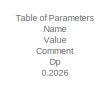
[diagram: root canvas - part 1/5, top right region]
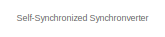
[diagram: root canvas - part 2/5, top left region]
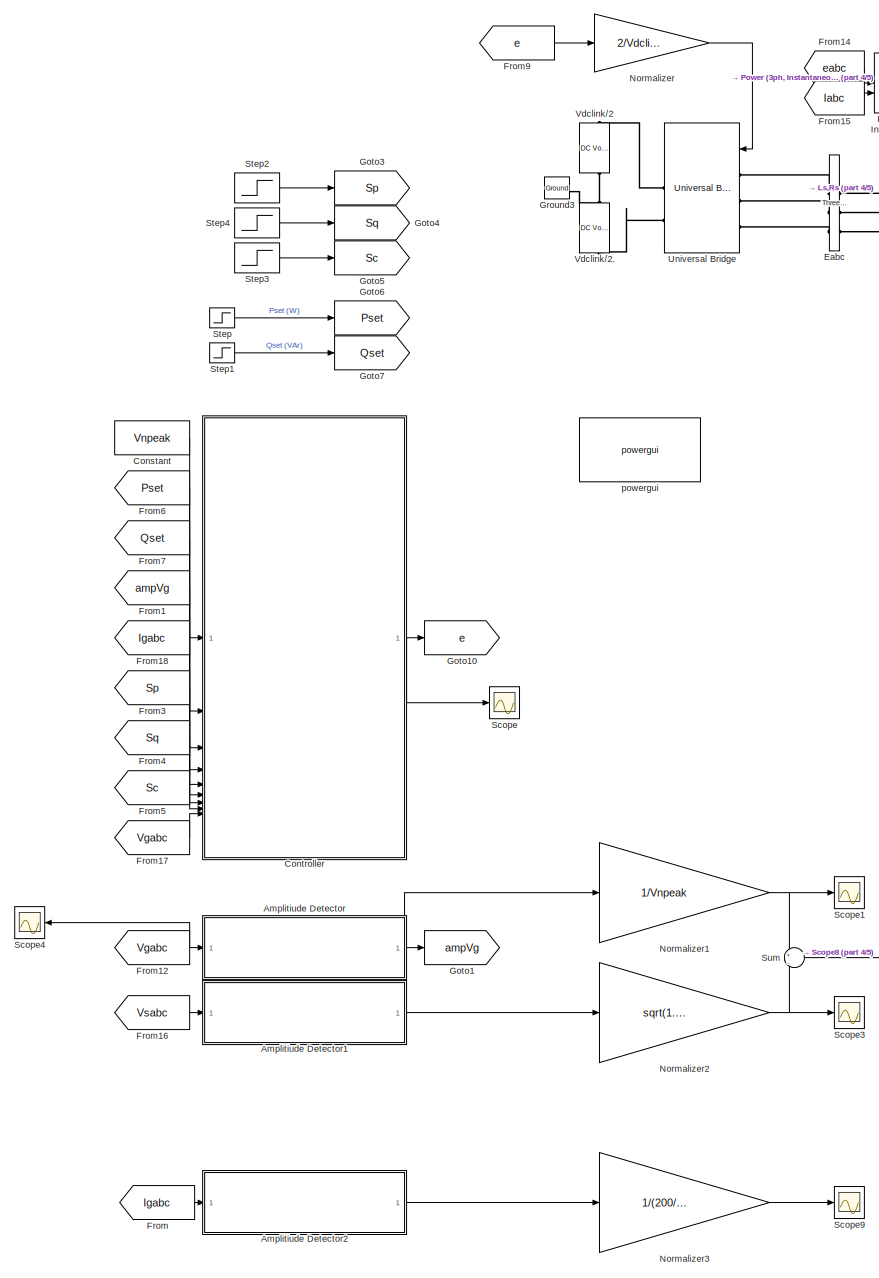
[diagram: root canvas - part 3/5, left side, full height]
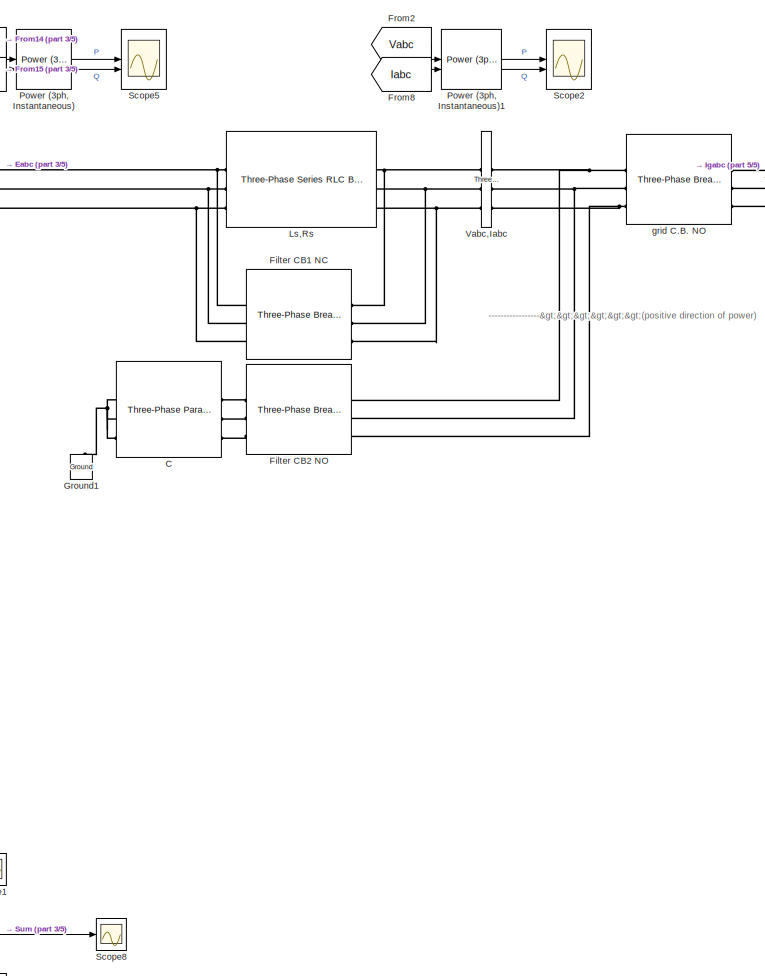
[diagram: root canvas - part 4/5, central region]
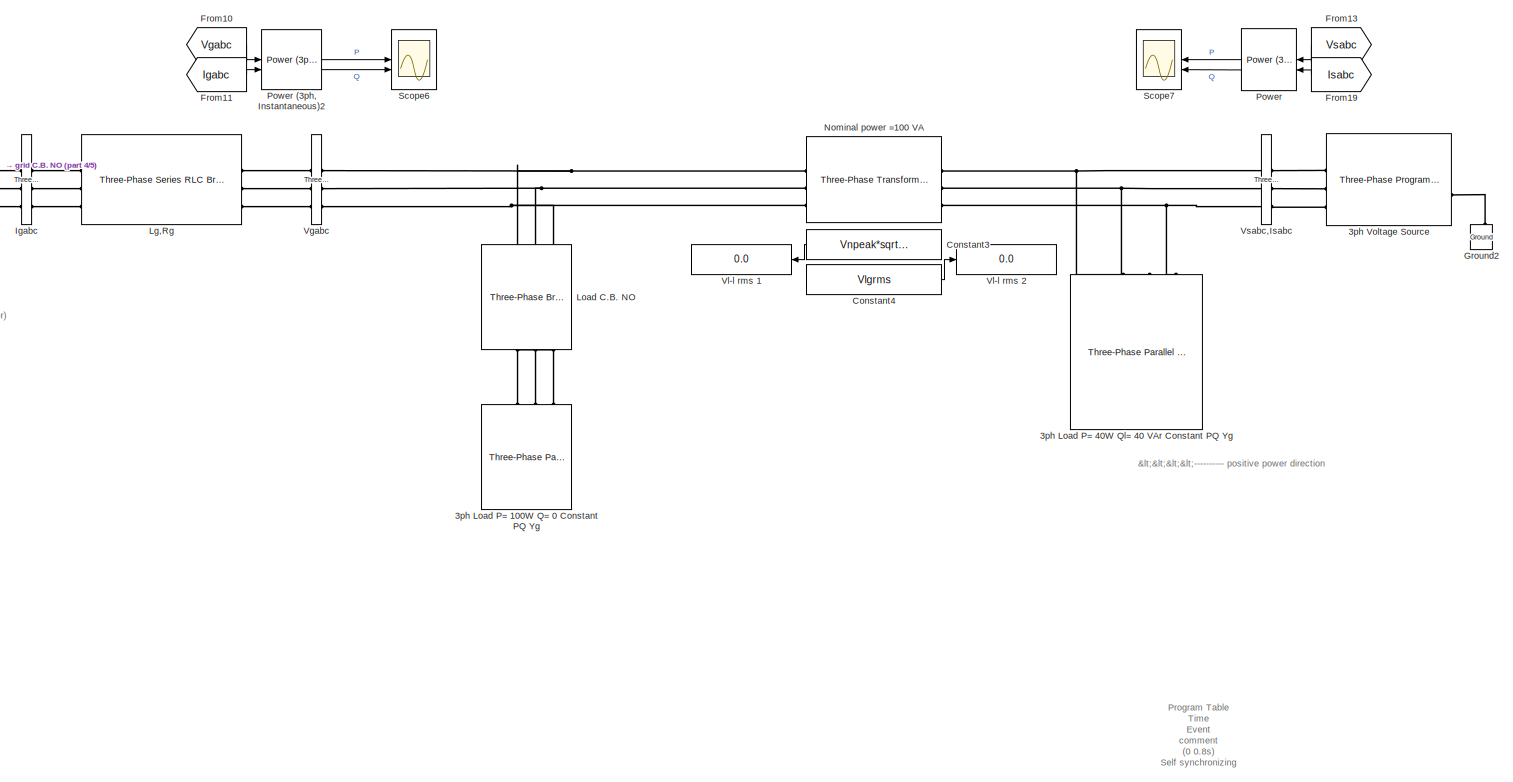
[diagram: root canvas - part 5/5, middle right region]
MODEL slx_bbf747a869e3
KIND model
CONFIG AbsTol = auto
CONFIG EnableMultiTasking = off
CONFIG FixedStep = 1e-5
CONFIG MaxStep = 0.2e-3
CONFIG MinStep = auto
CONFIG RelTol = 1e-3
CONFIG SampleTimeConstraint = Unconstrained
CONFIG SolverName = ode23tb
CONFIG StartTime = 0.0
CONFIG StopTime = 9
WORKSPACE source: mxarray member
WORKSPACE Dp = 0.2026
WORKSPACE Dq = 117.88
WORKSPACE Ki = 9
WORKSPACE Kp = 1
WORKSPACE L = 0.0002
WORKSPACE Lg = 0.00015
WORKSPACE Ls = 0.00045
WORKSPACE Pset = 80
WORKSPACE Qset = 60
WORKSPACE R = 0.05
WORKSPACE Rg = 0.045
WORKSPACE Rs = 0.135
WORKSPACE Vdclink = 42
WORKSPACE Vlgrms = 380
WORKSPACE Vnpeak = 16.9667989517
WORKSPACE Wn = 314.159265359
WORKSPACE Ws = 94247.7796077
WORKSPACE fg = 50
WORKSPACE fs = 15000
WORKSPACE tf = 0.002
WORKSPACE tv = 0.02
BLOCK [Reference] 3ph Load P= 100W Q= 0 Constant PQ Yg  REF=spsThreePhaseParallelRLCLoadLib/Three-Phase
Parallel RLC Load
  AttributesFormatString = \n
  LibrarySourceBlock = sps_lib/Passives/Three-Phase\nParallel RLC Load
  NameLocation = right
  SourceBlock = spsThreePhaseParallelRLCLoadLib/Three-Phase\nParallel RLC Load
  SourceType = Three-Phase Parallel RLC Load
BLOCK [Reference] 3ph Load P= 40W Ql= 40 VAr Constant PQ Yg  REF=spsThreePhaseParallelRLCLoadLib/Three-Phase
Parallel RLC Load
  AttributesFormatString = \n
  LibrarySourceBlock = sps_lib/Passives/Three-Phase\nParallel RLC Load
  NameLocation = right
  SourceBlock = spsThreePhaseParallelRLCLoadLib/Three-Phase\nParallel RLC Load
  SourceType = Three-Phase Parallel RLC Load
BLOCK [Reference] 3ph Voltage Source  REF=spsThreePhaseProgrammableVoltageSourceLib/Three-Phase
Programmable
Voltage Source
  LibrarySourceBlock = sps_lib/Sources/Three-Phase\nProgrammable\nVoltage Source
  SourceBlock = spsThreePhaseProgrammableVoltageSourceLib/Three-Phase\nProgrammable\nVoltage Source
  SourceType = Three-Phase Programmable Voltage Source
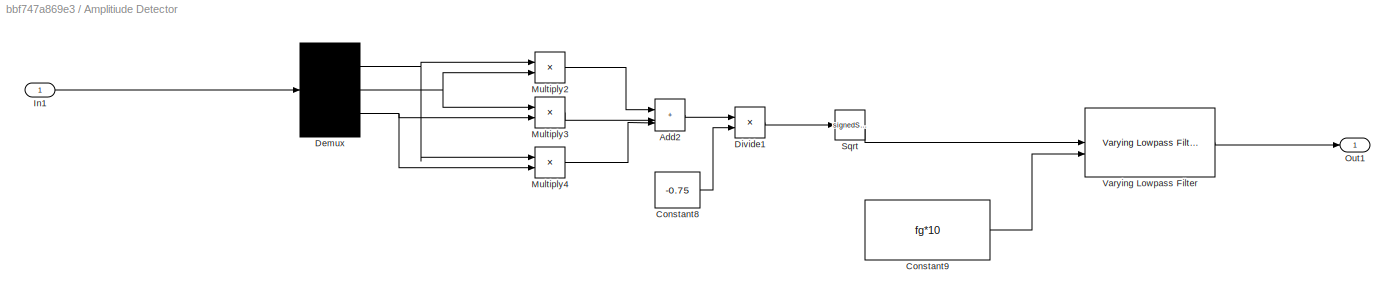
BLOCK [SubSystem] Amplitiude Detector
  NameLocation = top
BLOCK [Sum] Amplitiude Detector/Add2
  IconShape = rectangular
  Inputs = 3
BLOCK [Constant] Amplitiude Detector/Constant8
  Value = -0.75
BLOCK [Constant] Amplitiude Detector/Constant9
  Value = fg*10
BLOCK [Demux] Amplitiude Detector/Demux
  DisplayOption = none
  Outputs = 3
BLOCK [Product] Amplitiude Detector/Divide1
  Inputs = */
BLOCK [Inport] Amplitiude Detector/In1
BLOCK [Product] Amplitiude Detector/Multiply2
BLOCK [Product] Amplitiude Detector/Multiply3
BLOCK [Product] Amplitiude Detector/Multiply4
BLOCK [Outport] Amplitiude Detector/Out1
  VectorParamsAs1DForOutWhenUnconnected = off
BLOCK [Sqrt] Amplitiude Detector/Sqrt
  Operator = signedSqrt
BLOCK [Reference] Amplitiude Detector/Varying Lowpass Filter  REF=cstblocks/Linear Parameter Varying/Varying Lowpass Filter
  SourceBlock = cstblocks/Linear Parameter Varying/Varying Lowpass Filter
  SourceType = Varying Lowpass Filter
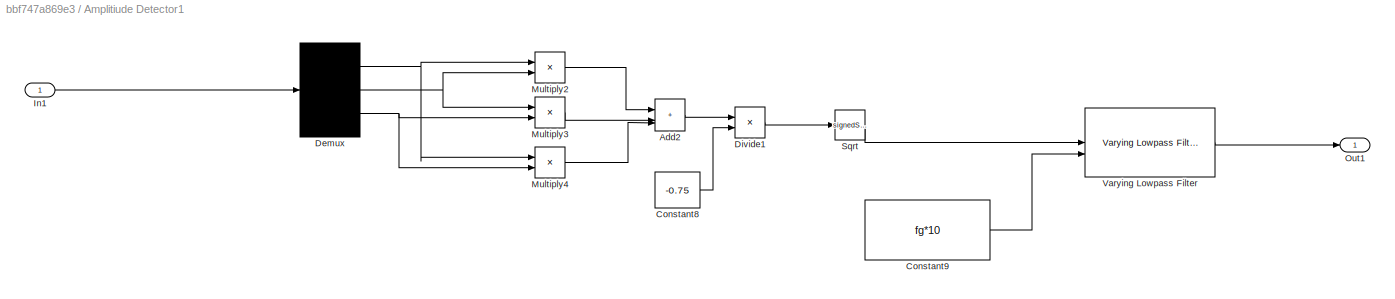
BLOCK [SubSystem] Amplitiude Detector1
BLOCK [Sum] Amplitiude Detector1/Add2
  IconShape = rectangular
  Inputs = 3
BLOCK [Constant] Amplitiude Detector1/Constant8
  Value = -0.75
BLOCK [Constant] Amplitiude Detector1/Constant9
  Value = fg*10
BLOCK [Demux] Amplitiude Detector1/Demux
  DisplayOption = none
  Outputs = 3
BLOCK [Product] Amplitiude Detector1/Divide1
  Inputs = */
BLOCK [Inport] Amplitiude Detector1/In1
BLOCK [Product] Amplitiude Detector1/Multiply2
BLOCK [Product] Amplitiude Detector1/Multiply3
BLOCK [Product] Amplitiude Detector1/Multiply4
BLOCK [Outport] Amplitiude Detector1/Out1
  VectorParamsAs1DForOutWhenUnconnected = off
BLOCK [Sqrt] Amplitiude Detector1/Sqrt
  Operator = signedSqrt
BLOCK [Reference] Amplitiude Detector1/Varying Lowpass Filter  REF=cstblocks/Linear Parameter Varying/Varying Lowpass Filter
  SourceBlock = cstblocks/Linear Parameter Varying/Varying Lowpass Filter
  SourceType = Varying Lowpass Filter
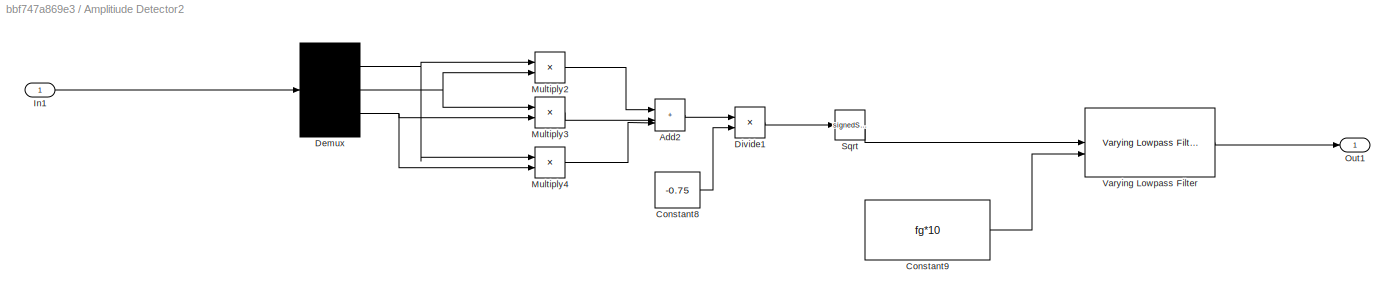
BLOCK [SubSystem] Amplitiude Detector2
BLOCK [Sum] Amplitiude Detector2/Add2
  IconShape = rectangular
  Inputs = 3
BLOCK [Constant] Amplitiude Detector2/Constant8
  Value = -0.75
BLOCK [Constant] Amplitiude Detector2/Constant9
  Value = fg*10
BLOCK [Demux] Amplitiude Detector2/Demux
  DisplayOption = none
  Outputs = 3
BLOCK [Product] Amplitiude Detector2/Divide1
  Inputs = */
BLOCK [Inport] Amplitiude Detector2/In1
BLOCK [Product] Amplitiude Detector2/Multiply2
BLOCK [Product] Amplitiude Detector2/Multiply3
BLOCK [Product] Amplitiude Detector2/Multiply4
BLOCK [Outport] Amplitiude Detector2/Out1
  VectorParamsAs1DForOutWhenUnconnected = off
BLOCK [Sqrt] Amplitiude Detector2/Sqrt
  Operator = signedSqrt
BLOCK [Reference] Amplitiude Detector2/Varying Lowpass Filter  REF=cstblocks/Linear Parameter Varying/Varying Lowpass Filter
  SourceBlock = cstblocks/Linear Parameter Varying/Varying Lowpass Filter
  SourceType = Varying Lowpass Filter
BLOCK [Reference] C  REF=spsThreePhaseParallelRLCBranchLib/Three-Phase
Parallel RLC Branch
  AttributesFormatString = \n
  LibrarySourceBlock = sps_lib/Passives/Three-Phase\nParallel RLC Branch
  SourceBlock = spsThreePhaseParallelRLCBranchLib/Three-Phase\nParallel RLC Branch
  SourceType = Three-Phase Parallel RLC Branch
BLOCK [Constant] Constant
  Value = Vnpeak
BLOCK [Constant] Constant3
  Value = Vnpeak*sqrt(1.5)
BLOCK [Constant] Constant4
  Value = Vlgrms
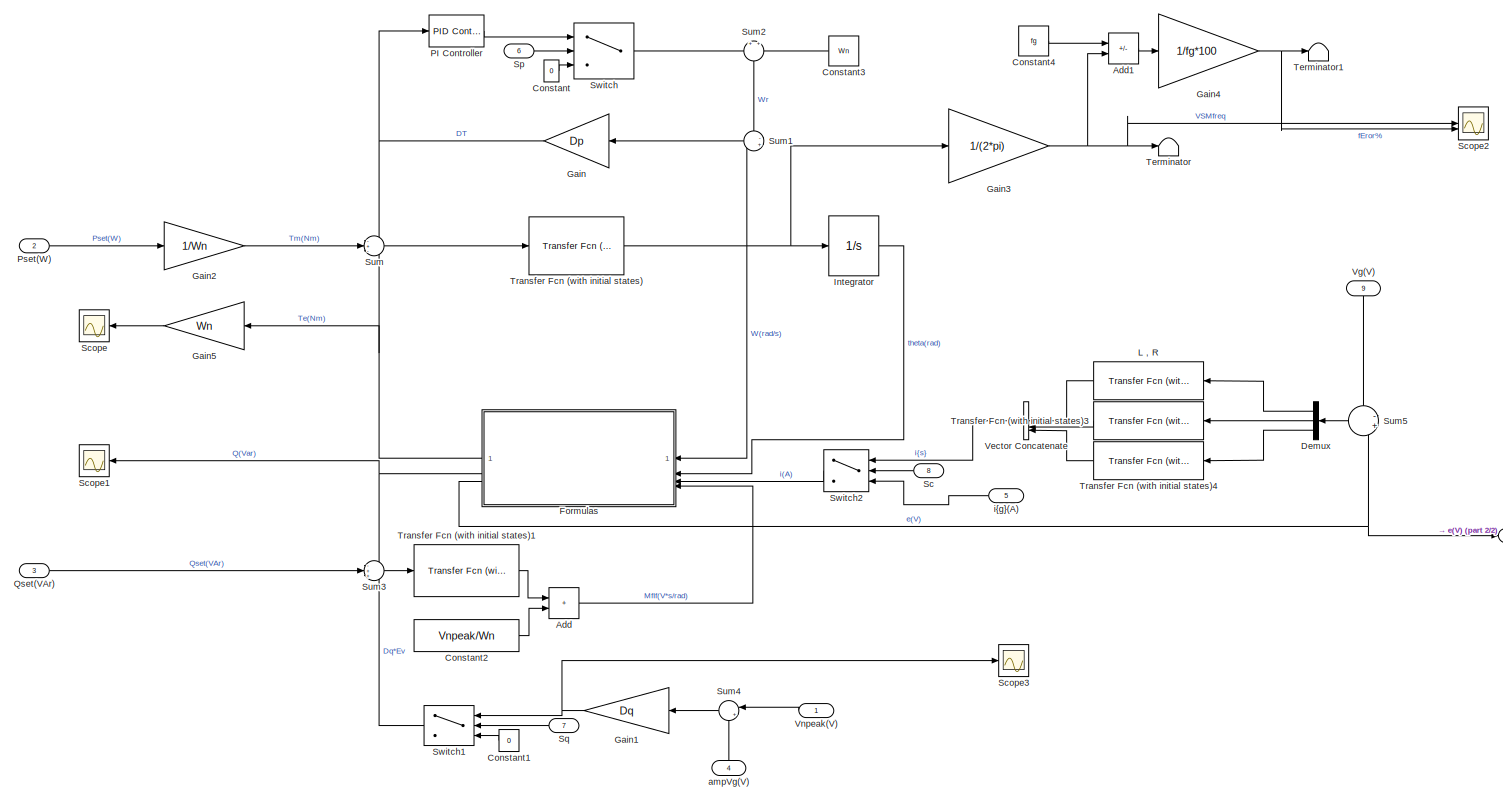
[diagram: Controller - part 1/2, most of the canvas]
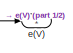
[diagram: Controller - part 2/2, bottom right region]
BLOCK [SubSystem] Controller
  NameLocation = top
BLOCK [Sum] Controller/Add
  IconShape = rectangular
BLOCK [Sum] Controller/Add1
  IconShape = rectangular
  Inputs = -+
BLOCK [Constant] Controller/Constant
  Value = 0
BLOCK [Constant] Controller/Constant1
  Value = 0
BLOCK [Constant] Controller/Constant2
  Value = Vnpeak/Wn
BLOCK [Constant] Controller/Constant3
  Value = Wn
BLOCK [Constant] Controller/Constant4
  Value = fg
BLOCK [Demux] Controller/Demux
  Outputs = 3
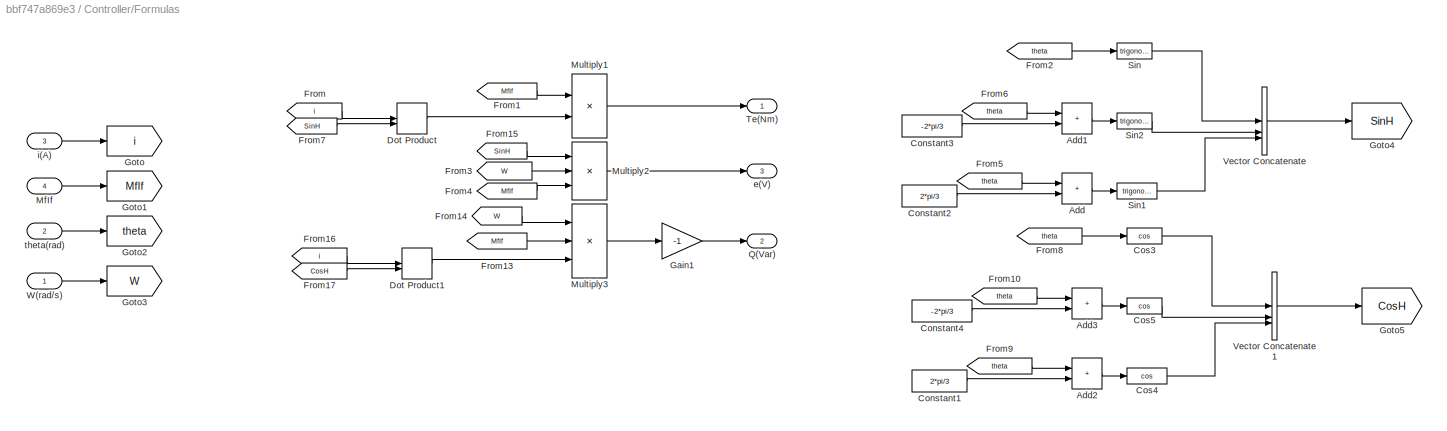
BLOCK [SubSystem] Controller/Formulas
  NameLocation = top
BLOCK [Sum] Controller/Formulas/Add
  IconShape = rectangular
BLOCK [Sum] Controller/Formulas/Add1
  IconShape = rectangular
BLOCK [Sum] Controller/Formulas/Add2
  IconShape = rectangular
BLOCK [Sum] Controller/Formulas/Add3
  IconShape = rectangular
BLOCK [Constant] Controller/Formulas/Constant1
  Value = 2*pi/3
BLOCK [Constant] Controller/Formulas/Constant2
  Value = 2*pi/3
BLOCK [Constant] Controller/Formulas/Constant3
  Value = -2*pi/3
BLOCK [Constant] Controller/Formulas/Constant4
  Value = -2*pi/3
BLOCK [Trigonometry] Controller/Formulas/Cos3
  Operator = cos
BLOCK [Trigonometry] Controller/Formulas/Cos4
  Operator = cos
BLOCK [Trigonometry] Controller/Formulas/Cos5
  Operator = cos
BLOCK [DotProduct] Controller/Formulas/Dot Product
  OutDataTypeStr = Inherit: Inherit via internal rule
BLOCK [DotProduct] Controller/Formulas/Dot Product1
  OutDataTypeStr = Inherit: Inherit via internal rule
BLOCK [From] Controller/Formulas/From
  GotoTag = i
BLOCK [From] Controller/Formulas/From1
  GotoTag = MfIf
BLOCK [From] Controller/Formulas/From10
  GotoTag = theta
BLOCK [From] Controller/Formulas/From13
  GotoTag = MfIf
BLOCK [From] Controller/Formulas/From14
  GotoTag = W
  NameLocation = top
BLOCK [From] Controller/Formulas/From15
  GotoTag = SinH
BLOCK [From] Controller/Formulas/From16
  GotoTag = i
BLOCK [From] Controller/Formulas/From17
  GotoTag = CosH
BLOCK [From] Controller/Formulas/From2
  GotoTag = theta
BLOCK [From] Controller/Formulas/From3
  GotoTag = W
  NameLocation = top
BLOCK [From] Controller/Formulas/From4
  GotoTag = MfIf
BLOCK [From] Controller/Formulas/From5
  GotoTag = theta
BLOCK [From] Controller/Formulas/From6
  GotoTag = theta
BLOCK [From] Controller/Formulas/From7
  GotoTag = SinH
BLOCK [From] Controller/Formulas/From8
  GotoTag = theta
BLOCK [From] Controller/Formulas/From9
  GotoTag = theta
BLOCK [Gain] Controller/Formulas/Gain1
  Gain = -1
BLOCK [Goto] Controller/Formulas/Goto
  GotoTag = i
BLOCK [Goto] Controller/Formulas/Goto1
  GotoTag = MfIf
BLOCK [Goto] Controller/Formulas/Goto2
  GotoTag = theta
BLOCK [Goto] Controller/Formulas/Goto3
  GotoTag = W
BLOCK [Goto] Controller/Formulas/Goto4
  GotoTag = SinH
BLOCK [Goto] Controller/Formulas/Goto5
  GotoTag = CosH
BLOCK [Inport] Controller/Formulas/MfIf
  Port = 4
  Unit = V*s/rad
BLOCK [Product] Controller/Formulas/Multiply1
BLOCK [Product] Controller/Formulas/Multiply2
  Inputs = 3
BLOCK [Product] Controller/Formulas/Multiply3
  Inputs = 3
BLOCK [Outport] Controller/Formulas/Q(Var)
  NameLocation = top
  Port = 2
  Unit = W
  VectorParamsAs1DForOutWhenUnconnected = off
BLOCK [Trigonometry] Controller/Formulas/Sin
BLOCK [Trigonometry] Controller/Formulas/Sin1
BLOCK [Trigonometry] Controller/Formulas/Sin2
BLOCK [Outport] Controller/Formulas/Te(Nm)
  NameLocation = top
  Unit = N*m
  VectorParamsAs1DForOutWhenUnconnected = off
BLOCK [Concatenate] Controller/Formulas/Vector Concatenate
  NumInputs = 3
BLOCK [Concatenate] Controller/Formulas/Vector Concatenate1
  NumInputs = 3
BLOCK [Inport] Controller/Formulas/W(rad//s)
  Unit = rad/s
BLOCK [Outport] Controller/Formulas/e(V)
  NameLocation = top
  Port = 3
  Unit = V
  VectorParamsAs1DForOutWhenUnconnected = off
BLOCK [Inport] Controller/Formulas/i(A)
  Port = 3
  Unit = A
BLOCK [Inport] Controller/Formulas/theta(rad)
  Port = 2
  Unit = rad
BLOCK [Gain] Controller/Gain
  Gain = Dp
BLOCK [Gain] Controller/Gain1
  Gain = Dq
BLOCK [Gain] Controller/Gain2
  Gain = 1/Wn
BLOCK [Gain] Controller/Gain3
  Gain = 1/(2*pi)
BLOCK [Gain] Controller/Gain4
  Gain = 1/fg*100
BLOCK [Gain] Controller/Gain5
  Gain = Wn
BLOCK [Integrator] Controller/Integrator
  WrapState = on
  WrappedStateLowerValue = 0
  WrappedStateUpperValue = 2*pi
  ZeroCross = off
BLOCK [Reference] Controller/L , R  REF=simulink_extras/Additional
Linear/Transfer Fcn
(with initial states)
  NameLocation = top
  SourceBlock = simulink_extras/Additional\nLinear/Transfer Fcn\n(with initial states)
  SourceType = Transfer Function with Initial States
BLOCK [Reference] Controller/PI Controller  REF=slpidlib/PID Controller
  SourceBlock = slpidlib/PID Controller
  SourceType = PID 1dof
BLOCK [Inport] Controller/Pset(W)
  Port = 2
  Unit = W
BLOCK [Inport] Controller/Qset(VAr)
  Port = 3
  Unit = W
BLOCK [Inport] Controller/Sc
  Port = 8
BLOCK [Scope] Controller/Scope
  Floating = off
  NumInputPorts = 1
  ScopeSpecificationString = Simulink.scopes.TimeScopeBlockCfg('CurrentConfiguration', extmgr.ConfigurationSet(extmgr.Configuration('Core','General UI',true),extmgr.Configuration('Core','Source UI',true),extmgr.Configuration('Sources','WiredSimulink',true,'DataLoggingVariableName','ScopeData3'),extmgr.Configuration('Visuals','Time Domain',true,'SerializedDisplays',{struct('MinYLimReal','-100','MaxYLimReal','100','YLabelReal',...<+1452ch>
BLOCK [Scope] Controller/Scope1
  Floating = off
  NumInputPorts = 1
  ScopeSpecificationString = Simulink.scopes.TimeScopeBlockCfg('CurrentConfiguration', extmgr.ConfigurationSet(extmgr.Configuration('Core','General UI',true),extmgr.Configuration('Core','Source UI',true),extmgr.Configuration('Sources','WiredSimulink',true,'DataLoggingVariableName','ScopeData1'),extmgr.Configuration('Visuals','Time Domain',true,'SerializedDisplays',{struct('MinYLimReal','-10','MaxYLimReal','75','YLabelReal',''...<+1399ch>
BLOCK [Scope] Controller/Scope2
  Floating = off
  NumInputPorts = 2
  ScopeSpecificationString = Simulink.scopes.TimeScopeBlockCfg('CurrentConfiguration', extmgr.ConfigurationSet(extmgr.Configuration('Core','General UI',true),extmgr.Configuration('Core','Source UI',true),extmgr.Configuration('Sources','WiredSimulink',true,'DataLoggingVariableName','ScopeData1'),extmgr.Configuration('Visuals','Time Domain',true,'SerializedDisplays',{struct('MinYLimReal','49.8','MaxYLimReal','50.2','YLabelReal'...<+2065ch>
BLOCK [Scope] Controller/Scope3
  Floating = off
  NumInputPorts = 1
  ScopeSpecificationString = Simulink.scopes.TimeScopeBlockCfg('CurrentConfiguration', extmgr.ConfigurationSet(extmgr.Configuration('Core','General UI',true),extmgr.Configuration('Core','Source UI',true),extmgr.Configuration('Sources','WiredSimulink',true,'DataLoggingVariableName','ScopeData1'),extmgr.Configuration('Visuals','Time Domain',true,'SerializedDisplays',{struct('MinYLimReal','-175','MaxYLimReal','25','YLabelReal','...<+1408ch>
BLOCK [Inport] Controller/Sp
  Port = 6
BLOCK [Inport] Controller/Sq
  Port = 7
BLOCK [Sum] Controller/Sum
  Inputs = -+-
BLOCK [Sum] Controller/Sum1
  Inputs = -+
BLOCK [Sum] Controller/Sum2
  Inputs = +|+
  NameLocation = left
BLOCK [Sum] Controller/Sum3
  Inputs = -++
BLOCK [Sum] Controller/Sum4
  Inputs = |+-
BLOCK [Sum] Controller/Sum5
  Inputs = -+
BLOCK [Switch] Controller/Switch
  Criteria = u2 > Threshold
  InputSameDT = off
  SaturateOnIntegerOverflow = off
BLOCK [Switch] Controller/Switch1
  Criteria = u2 > Threshold
  InputSameDT = off
  SaturateOnIntegerOverflow = off
BLOCK [Switch] Controller/Switch2
  Criteria = u2 > Threshold
  InputSameDT = off
  SaturateOnIntegerOverflow = off
BLOCK [Terminator] Controller/Terminator
BLOCK [Terminator] Controller/Terminator1
BLOCK [Reference] Controller/Transfer Fcn (with initial states)  REF=simulink_extras/Additional
Linear/Transfer Fcn
(with initial states)
  SourceBlock = simulink_extras/Additional\nLinear/Transfer Fcn\n(with initial states)
  SourceType = Transfer Function with Initial States
BLOCK [Reference] Controller/Transfer Fcn (with initial states)1  REF=simulink_extras/Additional
Linear/Transfer Fcn
(with initial states)
  SourceBlock = simulink_extras/Additional\nLinear/Transfer Fcn\n(with initial states)
  SourceType = Transfer Function with Initial States
BLOCK [Reference] Controller/Transfer Fcn (with initial states)3  REF=simulink_extras/Additional
Linear/Transfer Fcn
(with initial states)
  SourceBlock = simulink_extras/Additional\nLinear/Transfer Fcn\n(with initial states)
  SourceType = Transfer Function with Initial States
BLOCK [Reference] Controller/Transfer Fcn (with initial states)4  REF=simulink_extras/Additional
Linear/Transfer Fcn
(with initial states)
  SourceBlock = simulink_extras/Additional\nLinear/Transfer Fcn\n(with initial states)
  SourceType = Transfer Function with Initial States
BLOCK [Concatenate] Controller/Vector Concatenate
  NumInputs = 3
BLOCK [Inport] Controller/Vg(V)
  NameLocation = right
  Port = 9
  Unit = V
BLOCK [Inport] Controller/Vnpeak(V)
  NameLocation = top
  Unit = V
BLOCK [Inport] Controller/ampVg(V)
  NameLocation = right
  Port = 4
  Unit = V
BLOCK [Outport] Controller/e(V)
  NameLocation = top
  Unit = V
  VectorParamsAs1DForOutWhenUnconnected = off
BLOCK [Inport] Controller/i{g}(A)
  Port = 5
  Unit = A
BLOCK [Reference] Eabc  REF=spsThreePhaseVIMeasurementLib/Three-Phase
V-I Measurement
  LibrarySourceBlock = sps_lib/Sensors and Measurements/Three-Phase\nV-I Measurement
  NameLocation = top
  SourceBlock = spsThreePhaseVIMeasurementLib/Three-Phase\nV-I Measurement
  SourceType = Three-Phase VI Measurement
BLOCK [Reference] Filter CB1 NC  REF=spsThreePhaseBreakerLib/Three-Phase Breaker
  LibrarySourceBlock = sps_lib/Power Grid Elements/Three-Phase Breaker
  NameLocation = top
  SourceBlock = spsThreePhaseBreakerLib/Three-Phase Breaker
  SourceType = Three-Phase Breaker
BLOCK [Reference] Filter CB2 NO  REF=spsThreePhaseBreakerLib/Three-Phase Breaker
  LibrarySourceBlock = sps_lib/Power Grid Elements/Three-Phase Breaker
  SourceBlock = spsThreePhaseBreakerLib/Three-Phase Breaker
  SourceType = Three-Phase Breaker
BLOCK [From] From
  GotoTag = Igabc
  TagVisibility = global
BLOCK [From] From1
  GotoTag = ampVg
BLOCK [From] From10
  GotoTag = Vgabc
  TagVisibility = global
BLOCK [From] From11
  GotoTag = Igabc
  TagVisibility = global
BLOCK [From] From12
  GotoTag = Vgabc
  TagVisibility = global
BLOCK [From] From13
  GotoTag = Vsabc
  TagVisibility = global
BLOCK [From] From14
  GotoTag = eabc
  TagVisibility = global
BLOCK [From] From15
  GotoTag = Iabc
  TagVisibility = global
BLOCK [From] From16
  GotoTag = Vsabc
  TagVisibility = global
BLOCK [From] From17
  GotoTag = Vgabc
  TagVisibility = global
BLOCK [From] From18
  GotoTag = Igabc
  TagVisibility = global
BLOCK [From] From19
  GotoTag = Isabc
  TagVisibility = global
BLOCK [From] From2
  GotoTag = Vabc
  TagVisibility = global
BLOCK [From] From3
  GotoTag = Sp
  IconDisplay = Signal name
BLOCK [From] From4
  GotoTag = Sq
  IconDisplay = Signal name
BLOCK [From] From5
  GotoTag = Sc
  IconDisplay = Signal name
BLOCK [From] From6
  GotoTag = Pset
BLOCK [From] From7
  GotoTag = Qset
BLOCK [From] From8
  GotoTag = Iabc
  TagVisibility = global
BLOCK [From] From9
  GotoTag = e
BLOCK [Goto] Goto1
  GotoTag = ampVg
  IconDisplay = Signal name
BLOCK [Goto] Goto10
  GotoTag = e
  NameLocation = top
BLOCK [Goto] Goto3
  GotoTag = Sp
  NameLocation = top
BLOCK [Goto] Goto4
  GotoTag = Sq
  NameLocation = top
BLOCK [Goto] Goto5
  GotoTag = Sc
  NameLocation = top
BLOCK [Goto] Goto6
  GotoTag = Pset
BLOCK [Goto] Goto7
  GotoTag = Qset
BLOCK [Reference] Ground1  REF=spsGroundLib/Ground
  LibrarySourceBlock = sps_lib/Utilities/Ground
  NameLocation = right
  SourceBlock = spsGroundLib/Ground
  SourceType = Ground
BLOCK [Reference] Ground2  REF=spsGroundLib/Ground
  LibrarySourceBlock = sps_lib/Utilities/Ground
  NameLocation = right
  SourceBlock = spsGroundLib/Ground
  SourceType = Ground
BLOCK [Reference] Ground3  REF=spsGroundLib/Ground
  LibrarySourceBlock = sps_lib/Utilities/Ground
  SourceBlock = spsGroundLib/Ground
  SourceType = Ground
BLOCK [Reference] Igabc  REF=spsThreePhaseVIMeasurementLib/Three-Phase
V-I Measurement
  LibrarySourceBlock = sps_lib/Sensors and Measurements/Three-Phase\nV-I Measurement
  NameLocation = top
  SourceBlock = spsThreePhaseVIMeasurementLib/Three-Phase\nV-I Measurement
  SourceType = Three-Phase VI Measurement
BLOCK [Reference] Lg,Rg  REF=spsThreePhaseSeriesRLCBranchLib/Three-Phase
Series RLC Branch
  AttributesFormatString = \n
  LibrarySourceBlock = sps_lib/Passives/Three-Phase\nSeries RLC Branch
  NameLocation = top
  SourceBlock = spsThreePhaseSeriesRLCBranchLib/Three-Phase\nSeries RLC Branch
  SourceType = Three-Phase Series RLC Branch
BLOCK [Reference] Load C.B.  NO  REF=spsThreePhaseBreakerLib/Three-Phase Breaker
  LibrarySourceBlock = sps_lib/Power Grid Elements/Three-Phase Breaker
  NameLocation = right
  SourceBlock = spsThreePhaseBreakerLib/Three-Phase Breaker
  SourceType = Three-Phase Breaker
BLOCK [Reference] Ls,Rs  REF=spsThreePhaseSeriesRLCBranchLib/Three-Phase
Series RLC Branch
  AttributesFormatString = \n
  LibrarySourceBlock = sps_lib/Passives/Three-Phase\nSeries RLC Branch
  NameLocation = top
  SourceBlock = spsThreePhaseSeriesRLCBranchLib/Three-Phase\nSeries RLC Branch
  SourceType = Three-Phase Series RLC Branch
BLOCK [Reference] Nominal power =100 VA  REF=spsThreePhaseTransformerTwoWindingsLib/Three-Phase
Transformer
(Two Windings)
  LibrarySourceBlock = sps_lib/Power Grid Elements/Three-Phase\nTransformer\n(Two Windings)
  NameLocation = top
  SourceBlock = spsThreePhaseTransformerTwoWindingsLib/Three-Phase\nTransformer\n(Two Windings)
  SourceType = Three-Phase Transformer (Two Windings)
BLOCK [Gain] Normalizer
  Gain = 2/Vdclink
  NameLocation = top
BLOCK [Gain] Normalizer1
  Gain = 1/Vnpeak
  NameLocation = top
BLOCK [Gain] Normalizer2
  Gain = sqrt(1.5)/Vlgrms
BLOCK [Gain] Normalizer3
  Gain = 1/(200/(3*Vnpeak))
BLOCK [Reference] Power  REF=spsPower3phInstantaneousLib/Power
(3ph, Instantaneous)
  LibrarySourceBlock = sps_lib/Sensors and Measurements/Power\n(3ph, Instantaneous)
  SourceBlock = spsPower3phInstantaneousLib/Power\n(3ph, Instantaneous)
  SourceType = Power (3ph, Instantaneous)
BLOCK [Reference] Power (3ph, Instantaneous)  REF=spsPower3phInstantaneousLib/Power
(3ph, Instantaneous)
  LibrarySourceBlock = sps_lib/Sensors and Measurements/Power\n(3ph, Instantaneous)
  SourceBlock = spsPower3phInstantaneousLib/Power\n(3ph, Instantaneous)
  SourceType = Power (3ph, Instantaneous)
BLOCK [Reference] Power (3ph, Instantaneous)1  REF=spsPower3phInstantaneousLib/Power
(3ph, Instantaneous)
  LibrarySourceBlock = sps_lib/Sensors and Measurements/Power\n(3ph, Instantaneous)
  SourceBlock = spsPower3phInstantaneousLib/Power\n(3ph, Instantaneous)
  SourceType = Power (3ph, Instantaneous)
BLOCK [Reference] Power (3ph, Instantaneous)2  REF=spsPower3phInstantaneousLib/Power
(3ph, Instantaneous)
  LibrarySourceBlock = sps_lib/Sensors and Measurements/Power\n(3ph, Instantaneous)
  SourceBlock = spsPower3phInstantaneousLib/Power\n(3ph, Instantaneous)
  SourceType = Power (3ph, Instantaneous)
BLOCK [Scope] Scope
  Floating = off
  NumInputPorts = 1
  ScopeSpecificationString = Simulink.scopes.TimeScopeBlockCfg('CurrentConfiguration', extmgr.ConfigurationSet(extmgr.Configuration('Core','General UI',true),extmgr.Configuration('Core','Source UI',true),extmgr.Configuration('Sources','WiredSimulink',true,'DataLoggingVariableName','ScopeData1'),extmgr.Configuration('Visuals','Time Domain',true,'SerializedDisplays',{struct('MinYLimReal','-11.66177','MaxYLimReal','14.3782','YLa...<+1452ch>
BLOCK [Scope] Scope1
  Floating = off
  NumInputPorts = 1
  ScopeSpecificationString = Simulink.scopes.TimeScopeBlockCfg('CurrentConfiguration', extmgr.ConfigurationSet(extmgr.Configuration('Core','General UI',true),extmgr.Configuration('Core','Source UI',true),extmgr.Configuration('Sources','WiredSimulink',true,'DataLoggingVariableName','ScopeData1'),extmgr.Configuration('Visuals','Time Domain',true,'SerializedDisplays',{struct('MinYLimReal','0.9','MaxYLimReal','1.1','YLabelReal','...<+1447ch>
BLOCK [Scope] Scope2
  Floating = off
  NumInputPorts = 2
  ScopeSpecificationString = Simulink.scopes.TimeScopeBlockCfg('CurrentConfiguration', extmgr.ConfigurationSet(extmgr.Configuration('Core','General UI',true),extmgr.Configuration('Core','Source UI',true),extmgr.Configuration('Sources','WiredSimulink',true,'DataLoggingVariableName','ScopeData1'),extmgr.Configuration('Visuals','Time Domain',true,'SerializedDisplays',{struct('MinYLimReal','-32.58932','MaxYLimReal','197.37066','Y...<+1445ch>
BLOCK [Scope] Scope3
  Floating = off
  NumInputPorts = 1
  ScopeSpecificationString = Simulink.scopes.TimeScopeBlockCfg('CurrentConfiguration', extmgr.ConfigurationSet(extmgr.Configuration('Core','General UI',true),extmgr.Configuration('Core','Source UI',true),extmgr.Configuration('Sources','WiredSimulink',true,'DataLoggingVariableName','ScopeData2'),extmgr.Configuration('Visuals','Time Domain',true,'SerializedDisplays',{struct('MinYLimReal','0.9','MaxYLimReal','1.05','YLabelReal',...<+1451ch>
BLOCK [Scope] Scope4
  Floating = off
  NumInputPorts = 1
  ScopeSpecificationString = Simulink.scopes.TimeScopeBlockCfg('CurrentConfiguration', extmgr.ConfigurationSet(extmgr.Configuration('Core','General UI',true),extmgr.Configuration('Core','Source UI',true),extmgr.Configuration('Sources','WiredSimulink',true,'DataLoggingVariableName','ScopeData1'),extmgr.Configuration('Visuals','Time Domain',true,'SerializedDisplays',{struct('MinYLimReal','-12.5','MaxYLimReal','12.5','YLabelReal...<+1473ch>
BLOCK [Scope] Scope5
  Floating = off
  NumInputPorts = 2
  ScopeSpecificationString = Simulink.scopes.TimeScopeBlockCfg('CurrentConfiguration', extmgr.ConfigurationSet(extmgr.Configuration('Core','General UI',true),extmgr.Configuration('Core','Source UI',true),extmgr.Configuration('Sources','WiredSimulink',true,'DataLoggingVariableName','ScopeData1'),extmgr.Configuration('Visuals','Time Domain',true,'SerializedDisplays',{struct('MinYLimReal','-10','MaxYLimReal','180','YLabelReal','...<+2010ch>
BLOCK [Scope] Scope6
  Floating = off
  NumInputPorts = 2
  ScopeSpecificationString = Simulink.scopes.TimeScopeBlockCfg('CurrentConfiguration', extmgr.ConfigurationSet(extmgr.Configuration('Core','General UI',true),extmgr.Configuration('Core','Source UI',true),extmgr.Configuration('Sources','WiredSimulink',true,'DataLoggingVariableName','ScopeData2'),extmgr.Configuration('Visuals','Time Domain',true,'SerializedDisplays',{struct('MinYLimReal','-32.76988','MaxYLimReal','193.13032','Y...<+1447ch>
BLOCK [Scope] Scope7
  Floating = off
  NumInputPorts = 2
  ScopeSpecificationString = Simulink.scopes.TimeScopeBlockCfg('CurrentConfiguration', extmgr.ConfigurationSet(extmgr.Configuration('Core','General UI',true),extmgr.Configuration('Core','Source UI',true),extmgr.Configuration('Sources','WiredSimulink',true,'DataLoggingVariableName','ScopeData3'),extmgr.Configuration('Visuals','Time Domain',true,'SerializedDisplays',{struct('MinYLimReal','-80','MaxYLimReal','95','YLabelReal',''...<+2003ch>
BLOCK [Scope] Scope8
  Floating = off
  NumInputPorts = 1
  ScopeSpecificationString = Simulink.scopes.TimeScopeBlockCfg('CurrentConfiguration', extmgr.ConfigurationSet(extmgr.Configuration('Core','General UI',true),extmgr.Configuration('Core','Source UI',true),extmgr.Configuration('Sources','WiredSimulink',true,'DataLoggingVariableName','ScopeData3'),extmgr.Configuration('Visuals','Time Domain',true,'SerializedDisplays',{struct('MinYLimReal','-0.02025','MaxYLimReal','0.09397','YLab...<+1395ch>
BLOCK [Scope] Scope9
  Floating = off
  NumInputPorts = 1
  ScopeSpecificationString = Simulink.scopes.TimeScopeBlockCfg('CurrentConfiguration', extmgr.ConfigurationSet(extmgr.Configuration('Core','General UI',true),extmgr.Configuration('Core','Source UI',true),extmgr.Configuration('Sources','WiredSimulink',true,'DataLoggingVariableName','ScopeData2'),extmgr.Configuration('Visuals','Time Domain',true,'SerializedDisplays',{struct('MinYLimReal','-0.19825','MaxYLimReal','1.85798','YLab...<+1470ch>
BLOCK [Step] Step
  After = Pset
  SampleTime = 0
  Time = 2
BLOCK [Step] Step1
  After = Qset
  SampleTime = 0
  Time = 3
BLOCK [Step] Step2
  After = -1
  Before = 1
  SampleTime = 0
  Time = 4.5
BLOCK [Step] Step3
  After = -1
  Before = 1
  SampleTime = 0
  Time = 0.8
BLOCK [Step] Step4
  SampleTime = 0
  Time = 4.5
BLOCK [Sum] Sum
  Inputs = +|-
BLOCK [Reference] Universal Bridge  REF=spsUniversalBridgeLib/Universal Bridge
  LibrarySourceBlock = sps_lib/Power Electronics/Universal Bridge
  SourceBlock = spsUniversalBridgeLib/Universal Bridge
  SourceType = Universal Bridge
BLOCK [Reference] Vabc,Iabc  REF=spsThreePhaseVIMeasurementLib/Three-Phase
V-I Measurement
  LibrarySourceBlock = sps_lib/Sensors and Measurements/Three-Phase\nV-I Measurement
  NameLocation = top
  SourceBlock = spsThreePhaseVIMeasurementLib/Three-Phase\nV-I Measurement
  SourceType = Three-Phase VI Measurement
BLOCK [Reference] Vdclink//2  REF=spsDCVoltageSourceLib/DC Voltage Source
  LibrarySourceBlock = sps_lib/Sources/DC Voltage Source
  NameLocation = left
  SourceBlock = spsDCVoltageSourceLib/DC Voltage Source
  SourceType = DC Voltage Source
BLOCK [Reference] Vdclink//2.  REF=spsDCVoltageSourceLib/DC Voltage Source
  LibrarySourceBlock = sps_lib/Sources/DC Voltage Source
  NameLocation = left
  SourceBlock = spsDCVoltageSourceLib/DC Voltage Source
  SourceType = DC Voltage Source
BLOCK [Reference] Vgabc  REF=spsThreePhaseVIMeasurementLib/Three-Phase
V-I Measurement
  LibrarySourceBlock = sps_lib/Sensors and Measurements/Three-Phase\nV-I Measurement
  NameLocation = top
  SourceBlock = spsThreePhaseVIMeasurementLib/Three-Phase\nV-I Measurement
  SourceType = Three-Phase VI Measurement
BLOCK [Display] Vl-l rms 1
  Decimation = 1
  NameLocation = top
BLOCK [Display] Vl-l rms 2
  Decimation = 1
  NameLocation = top
BLOCK [Reference] Vsabc,Isabc  REF=spsThreePhaseVIMeasurementLib/Three-Phase
V-I Measurement
  LibrarySourceBlock = sps_lib/Sensors and Measurements/Three-Phase\nV-I Measurement
  NameLocation = top
  SourceBlock = spsThreePhaseVIMeasurementLib/Three-Phase\nV-I Measurement
  SourceType = Three-Phase VI Measurement
BLOCK [Reference] grid C.B.  NO  REF=spsThreePhaseBreakerLib/Three-Phase Breaker
  LibrarySourceBlock = sps_lib/Power Grid Elements/Three-Phase Breaker
  NameLocation = top
  SourceBlock = spsThreePhaseBreakerLib/Three-Phase Breaker
  SourceType = Three-Phase Breaker
BLOCK [Reference] powergui  REF=sps_lib/powergui
  Priority = 1
  SourceBlock = sps_lib/powergui
  SourceType = PSB option menu block
ANNOTATION (root): ----------------->>>>>>(positive direction of power)
ANNOTATION (root): Table of Parameters Name Value Comment Dp 0.2026 Dq 117.88 L 0.2 mH Lg 0.15 mH Ls 0.45 mH Pset 80 W Qset 60 VAr R 0.05 Ohm Rg 0.045 Ohm Rs 0.135 Ohm Vdclink 42 V Vlgrms 380 V Vnpeak 16.96 V Wn 314.1593 rad/s 2*pi*fg %%Ws 94247.78 rad/s 2*pi*fs fg 50 Hz %%fs 15000 Hz switching freq. tf 0.002 s tv 0.02 s J tf*Dp moment of inertia Ki 9 PI controller Kp 1 PI controller Kq tv*Wn*Dq
ANNOTATION (root): Program Table Time Event comment (0 0.8s) Self synchronizing 0.8s Sc(1--> -1) i= is (imag.) --> ig(real) 1s Connecting to grid Closing "grid C.B." (0.8 2s) Connected to grid without exchanging power 2s Applying Pset = 80 Watt 3s Applying Qset = 60 VAr 4.5s Enabling drooping mechanism Sq(0 -->1) , Sp(1 -->0) (5.5 7.5s) Inf. bus voltage dropping to 0.95pu 6.5s Active load (100W) connecting to the gr...<+62ch>
ANNOTATION (root): <<<<---------- positive power direction
ANNOTATION (root): Self-Synchronized Synchronverter
LINE Amplitiude Detector/Add2:1 -> Amplitiude Detector/Divide1:1
LINE Amplitiude Detector/Constant8:1 -> Amplitiude Detector/Divide1:2
LINE Amplitiude Detector/Constant9:1 -> Amplitiude Detector/Varying Lowpass Filter:2
NET Amplitiude Detector/Demux:1 -> Amplitiude Detector/Multiply2:1, Amplitiude Detector/Multiply4:1
NET Amplitiude Detector/Demux:2 -> Amplitiude Detector/Multiply2:2, Amplitiude Detector/Multiply3:1
NET Amplitiude Detector/Demux:3 -> Amplitiude Detector/Multiply3:2, Amplitiude Detector/Multiply4:2
LINE Amplitiude Detector/Divide1:1 -> Amplitiude Detector/Sqrt:1
LINE Amplitiude Detector/In1:1 -> Amplitiude Detector/Demux:1
LINE Amplitiude Detector/Multiply2:1 -> Amplitiude Detector/Add2:1
LINE Amplitiude Detector/Multiply3:1 -> Amplitiude Detector/Add2:2
LINE Amplitiude Detector/Multiply4:1 -> Amplitiude Detector/Add2:3
LINE Amplitiude Detector/Sqrt:1 -> Amplitiude Detector/Varying Lowpass Filter:1
LINE Amplitiude Detector/Varying Lowpass Filter:1 -> Amplitiude Detector/Out1:1
LINE Amplitiude Detector1/Add2:1 -> Amplitiude Detector1/Divide1:1
LINE Amplitiude Detector1/Constant8:1 -> Amplitiude Detector1/Divide1:2
LINE Amplitiude Detector1/Constant9:1 -> Amplitiude Detector1/Varying Lowpass Filter:2
NET Amplitiude Detector1/Demux:1 -> Amplitiude Detector1/Multiply2:1, Amplitiude Detector1/Multiply4:1
NET Amplitiude Detector1/Demux:2 -> Amplitiude Detector1/Multiply2:2, Amplitiude Detector1/Multiply3:1
NET Amplitiude Detector1/Demux:3 -> Amplitiude Detector1/Multiply3:2, Amplitiude Detector1/Multiply4:2
LINE Amplitiude Detector1/Divide1:1 -> Amplitiude Detector1/Sqrt:1
LINE Amplitiude Detector1/In1:1 -> Amplitiude Detector1/Demux:1
LINE Amplitiude Detector1/Multiply2:1 -> Amplitiude Detector1/Add2:1
LINE Amplitiude Detector1/Multiply3:1 -> Amplitiude Detector1/Add2:2
LINE Amplitiude Detector1/Multiply4:1 -> Amplitiude Detector1/Add2:3
LINE Amplitiude Detector1/Sqrt:1 -> Amplitiude Detector1/Varying Lowpass Filter:1
LINE Amplitiude Detector1/Varying Lowpass Filter:1 -> Amplitiude Detector1/Out1:1
LINE Amplitiude Detector1:1 -> Normalizer2:1
LINE Amplitiude Detector2/Add2:1 -> Amplitiude Detector2/Divide1:1
LINE Amplitiude Detector2/Constant8:1 -> Amplitiude Detector2/Divide1:2
LINE Amplitiude Detector2/Constant9:1 -> Amplitiude Detector2/Varying Lowpass Filter:2
NET Amplitiude Detector2/Demux:1 -> Amplitiude Detector2/Multiply2:1, Amplitiude Detector2/Multiply4:1
NET Amplitiude Detector2/Demux:2 -> Amplitiude Detector2/Multiply2:2, Amplitiude Detector2/Multiply3:1
NET Amplitiude Detector2/Demux:3 -> Amplitiude Detector2/Multiply3:2, Amplitiude Detector2/Multiply4:2
LINE Amplitiude Detector2/Divide1:1 -> Amplitiude Detector2/Sqrt:1
LINE Amplitiude Detector2/In1:1 -> Amplitiude Detector2/Demux:1
LINE Amplitiude Detector2/Multiply2:1 -> Amplitiude Detector2/Add2:1
LINE Amplitiude Detector2/Multiply3:1 -> Amplitiude Detector2/Add2:2
LINE Amplitiude Detector2/Multiply4:1 -> Amplitiude Detector2/Add2:3
LINE Amplitiude Detector2/Sqrt:1 -> Amplitiude Detector2/Varying Lowpass Filter:1
LINE Amplitiude Detector2/Varying Lowpass Filter:1 -> Amplitiude Detector2/Out1:1
LINE Amplitiude Detector2:1 -> Normalizer3:1
NET Amplitiude Detector:1 -> Goto1:1, Normalizer1:1
LINE Constant3:1 -> Vl-l rms 1:1
LINE Constant4:1 -> Vl-l rms 2:1
LINE Constant:1 -> Controller:1
LINE Controller/Add1:1 -> Controller/Gain4:1
LINE Controller/Add:1 -> Controller/Formulas:4
LINE Controller/Constant1:1 -> Controller/Switch1:3
LINE Controller/Constant2:1 -> Controller/Add:2
LINE Controller/Constant3:1 -> Controller/Sum2:2
LINE Controller/Constant4:1 -> Controller/Add1:1
LINE Controller/Constant:1 -> Controller/Switch:3
LINE Controller/Demux:1 -> Controller/L , R:1
LINE Controller/Demux:2 -> Controller/Transfer Fcn (with initial states)3:1
LINE Controller/Demux:3 -> Controller/Transfer Fcn (with initial states)4:1
LINE Controller/Formulas/Add1:1 -> Controller/Formulas/Sin2:1
LINE Controller/Formulas/Add2:1 -> Controller/Formulas/Cos4:1
LINE Controller/Formulas/Add3:1 -> Controller/Formulas/Cos5:1
LINE Controller/Formulas/Add:1 -> Controller/Formulas/Sin1:1
LINE Controller/Formulas/Constant1:1 -> Controller/Formulas/Add2:2
LINE Controller/Formulas/Constant2:1 -> Controller/Formulas/Add:2
LINE Controller/Formulas/Constant3:1 -> Controller/Formulas/Add1:2
LINE Controller/Formulas/Constant4:1 -> Controller/Formulas/Add3:2
LINE Controller/Formulas/Cos3:1 -> Controller/Formulas/Vector Concatenate1:1
LINE Controller/Formulas/Cos4:1 -> Controller/Formulas/Vector Concatenate1:3
LINE Controller/Formulas/Cos5:1 -> Controller/Formulas/Vector Concatenate1:2
LINE Controller/Formulas/Dot Product1:1 -> Controller/Formulas/Multiply3:3
LINE Controller/Formulas/Dot Product:1 -> Controller/Formulas/Multiply1:2
LINE Controller/Formulas/From10:1 -> Controller/Formulas/Add3:1
LINE Controller/Formulas/From13:1 -> Controller/Formulas/Multiply3:2
LINE Controller/Formulas/From14:1 -> Controller/Formulas/Multiply3:1
LINE Controller/Formulas/From15:1 -> Controller/Formulas/Multiply2:1
LINE Controller/Formulas/From16:1 -> Controller/Formulas/Dot Product1:1
LINE Controller/Formulas/From17:1 -> Controller/Formulas/Dot Product1:2
LINE Controller/Formulas/From1:1 -> Controller/Formulas/Multiply1:1
LINE Controller/Formulas/From2:1 -> Controller/Formulas/Sin:1
LINE Controller/Formulas/From3:1 -> Controller/Formulas/Multiply2:2
LINE Controller/Formulas/From4:1 -> Controller/Formulas/Multiply2:3
LINE Controller/Formulas/From5:1 -> Controller/Formulas/Add:1
LINE Controller/Formulas/From6:1 -> Controller/Formulas/Add1:1
LINE Controller/Formulas/From7:1 -> Controller/Formulas/Dot Product:2
LINE Controller/Formulas/From8:1 -> Controller/Formulas/Cos3:1
LINE Controller/Formulas/From9:1 -> Controller/Formulas/Add2:1
LINE Controller/Formulas/From:1 -> Controller/Formulas/Dot Product:1
LINE Controller/Formulas/Gain1:1 -> Controller/Formulas/Q(Var):1
LINE Controller/Formulas/MfIf:1 -> Controller/Formulas/Goto1:1
LINE Controller/Formulas/Multiply1:1 -> Controller/Formulas/Te(Nm):1
LINE Controller/Formulas/Multiply2:1 -> Controller/Formulas/e(V):1
LINE Controller/Formulas/Multiply3:1 -> Controller/Formulas/Gain1:1
LINE Controller/Formulas/Sin1:1 -> Controller/Formulas/Vector Concatenate:3
LINE Controller/Formulas/Sin2:1 -> Controller/Formulas/Vector Concatenate:2
LINE Controller/Formulas/Sin:1 -> Controller/Formulas/Vector Concatenate:1
LINE Controller/Formulas/Vector Concatenate1:1 -> Controller/Formulas/Goto5:1
LINE Controller/Formulas/Vector Concatenate:1 -> Controller/Formulas/Goto4:1
LINE Controller/Formulas/W(rad//s):1 -> Controller/Formulas/Goto3:1
LINE Controller/Formulas/i(A):1 -> Controller/Formulas/Goto:1
LINE Controller/Formulas/theta(rad):1 -> Controller/Formulas/Goto2:1
NET Controller/Formulas:1 -> Controller/Gain5:1, Controller/Sum:3
NET Controller/Formulas:2 -> Controller/Scope1:1, Controller/Sum3:1
NET Controller/Formulas:3 -> Controller/Sum5:2, Controller/e(V):1
NET Controller/Gain1:1 -> Controller/Scope3:1, Controller/Switch1:1
LINE Controller/Gain2:1 -> Controller/Sum:2
NET Controller/Gain3:1 -> Controller/Add1:2, Controller/Scope2:1, Controller/Terminator:1
NET Controller/Gain4:1 -> Controller/Scope2:2, Controller/Terminator1:1
LINE Controller/Gain5:1 -> Controller/Scope:1
NET Controller/Gain:1 -> Controller/PI Controller:1, Controller/Sum:1
LINE Controller/Integrator:1 -> Controller/Formulas:2
LINE Controller/L , R:1 -> Controller/Vector Concatenate:1
LINE Controller/PI Controller:1 -> Controller/Switch:1
LINE Controller/Pset(W):1 -> Controller/Gain2:1
LINE Controller/Qset(VAr):1 -> Controller/Sum3:2
LINE Controller/Sc:1 -> Controller/Switch2:2
LINE Controller/Sp:1 -> Controller/Switch:2
LINE Controller/Sq:1 -> Controller/Switch1:2
LINE Controller/Sum1:1 -> Controller/Gain:1
LINE Controller/Sum2:1 -> Controller/Sum1:1
LINE Controller/Sum3:1 -> Controller/Transfer Fcn (with initial states)1:1
LINE Controller/Sum4:1 -> Controller/Gain1:1
LINE Controller/Sum5:1 -> Controller/Demux:1
LINE Controller/Sum:1 -> Controller/Transfer Fcn (with initial states):1
LINE Controller/Switch1:1 -> Controller/Sum3:3
LINE Controller/Switch2:1 -> Controller/Formulas:3
LINE Controller/Switch:1 -> Controller/Sum2:1
LINE Controller/Transfer Fcn (with initial states)1:1 -> Controller/Add:1
LINE Controller/Transfer Fcn (with initial states)3:1 -> Controller/Vector Concatenate:2
LINE Controller/Transfer Fcn (with initial states)4:1 -> Controller/Vector Concatenate:3
NET Controller/Transfer Fcn (with initial states):1 -> Controller/Formulas:1, Controller/Gain3:1, Controller/Integrator:1, Controller/Sum1:2
LINE Controller/Vector Concatenate:1 -> Controller/Switch2:1
LINE Controller/Vg(V):1 -> Controller/Sum5:1
LINE Controller/Vnpeak(V):1 -> Controller/Sum4:1
LINE Controller/ampVg(V):1 -> Controller/Sum4:2
LINE Controller/i{g}(A):1 -> Controller/Switch2:3
NET Controller:1 -> Goto10:1, Scope:1
LINE From10:1 -> Power (3ph, Instantaneous)2:1
LINE From11:1 -> Power (3ph, Instantaneous)2:2
NET From12:1 -> Amplitiude Detector:1, Scope4:1
LINE From13:1 -> Power:1
LINE From14:1 -> Power (3ph, Instantaneous):1
LINE From15:1 -> Power (3ph, Instantaneous):2
LINE From16:1 -> Amplitiude Detector1:1
LINE From17:1 -> Controller:9
LINE From18:1 -> Controller:5
LINE From19:1 -> Power:2
LINE From1:1 -> Controller:4
LINE From2:1 -> Power (3ph, Instantaneous)1:1
LINE From3:1 -> Controller:6
LINE From4:1 -> Controller:7
LINE From5:1 -> Controller:8
LINE From6:1 -> Controller:2
LINE From7:1 -> Controller:3
LINE From8:1 -> Power (3ph, Instantaneous)1:2
LINE From9:1 -> Normalizer:1
LINE From:1 -> Amplitiude Detector2:1
NET Normalizer1:1 -> Scope1:1, Sum:1
NET Normalizer2:1 -> Scope3:1, Sum:2
LINE Normalizer3:1 -> Scope9:1
LINE Normalizer:1 -> Universal Bridge:1
LINE Power (3ph, Instantaneous)1:1 -> Scope2:1
LINE Power (3ph, Instantaneous)1:2 -> Scope2:2
LINE Power (3ph, Instantaneous)2:1 -> Scope6:1
LINE Power (3ph, Instantaneous)2:2 -> Scope6:2
LINE Power (3ph, Instantaneous):1 -> Scope5:1
LINE Power (3ph, Instantaneous):2 -> Scope5:2
LINE Power:1 -> Scope7:1
LINE Power:2 -> Scope7:2
LINE Step1:1 -> Goto7:1
LINE Step2:1 -> Goto3:1
LINE Step3:1 -> Goto5:1
LINE Step4:1 -> Goto4:1
LINE Step:1 -> Goto6:1
LINE Sum:1 -> Scope8:1
PLINE 3ph Load P= 100W Q= 0 Constant PQ Yg:LConn1 -- Load C.B.  NO:RConn3
PLINE 3ph Load P= 100W Q= 0 Constant PQ Yg:LConn2 -- Load C.B.  NO:RConn2
PLINE 3ph Load P= 100W Q= 0 Constant PQ Yg:LConn3 -- Load C.B.  NO:RConn1
PNET net1: 3ph Load P= 40W Ql= 40 VAr Constant PQ Yg:LConn1 -- Nominal power =100 VA:RConn1 -- Vsabc,Isabc:RConn1
PNET net2: 3ph Load P= 40W Ql= 40 VAr Constant PQ Yg:LConn2 -- Nominal power =100 VA:RConn2 -- Vsabc,Isabc:RConn2
PNET net3: 3ph Load P= 40W Ql= 40 VAr Constant PQ Yg:LConn3 -- Nominal power =100 VA:RConn3 -- Vsabc,Isabc:RConn3
PLINE 3ph Voltage Source:LConn1 -- Ground2:LConn1
PLINE 3ph Voltage Source:RConn1 -- Vsabc,Isabc:LConn1
PLINE 3ph Voltage Source:RConn2 -- Vsabc,Isabc:LConn2
PLINE 3ph Voltage Source:RConn3 -- Vsabc,Isabc:LConn3
PLINE C:LConn1 -- Filter CB2 NO:LConn1
PLINE C:LConn2 -- Filter CB2 NO:LConn2
PLINE C:LConn3 -- Filter CB2 NO:LConn3
PNET net4: C:RConn1 -- C:RConn2 -- C:RConn3 -- Ground1:LConn1
PLINE Eabc:LConn1 -- Universal Bridge:LConn1
PLINE Eabc:LConn2 -- Universal Bridge:LConn2
PLINE Eabc:LConn3 -- Universal Bridge:LConn3
PNET net5: Eabc:RConn1 -- Filter CB1 NC:LConn1 -- Ls,Rs:LConn1
PNET net6: Eabc:RConn2 -- Filter CB1 NC:LConn2 -- Ls,Rs:LConn2
PNET net7: Eabc:RConn3 -- Filter CB1 NC:LConn3 -- Ls,Rs:LConn3
PNET net8: Filter CB1 NC:RConn1 -- Ls,Rs:RConn1 -- Vabc,Iabc:LConn1
PNET net9: Filter CB1 NC:RConn2 -- Ls,Rs:RConn2 -- Vabc,Iabc:LConn2
PNET net10: Filter CB1 NC:RConn3 -- Ls,Rs:RConn3 -- Vabc,Iabc:LConn3
PNET net11: Filter CB2 NO:RConn1 -- Vabc,Iabc:RConn1 -- grid C.B.  NO:LConn1
PNET net12: Filter CB2 NO:RConn2 -- Vabc,Iabc:RConn2 -- grid C.B.  NO:LConn2
PNET net13: Filter CB2 NO:RConn3 -- Vabc,Iabc:RConn3 -- grid C.B.  NO:LConn3
PNET net14: Ground3:LConn1 -- Vdclink//2.:RConn1 -- Vdclink//2:LConn1
PLINE Igabc:LConn1 -- grid C.B.  NO:RConn1
PLINE Igabc:LConn2 -- grid C.B.  NO:RConn2
PLINE Igabc:LConn3 -- grid C.B.  NO:RConn3
PLINE Igabc:RConn1 -- Lg,Rg:LConn1
PLINE Igabc:RConn2 -- Lg,Rg:LConn2
PLINE Igabc:RConn3 -- Lg,Rg:LConn3
PLINE Lg,Rg:RConn1 -- Vgabc:LConn1
PLINE Lg,Rg:RConn2 -- Vgabc:LConn2
PLINE Lg,Rg:RConn3 -- Vgabc:LConn3
PNET net15: Load C.B.  NO:LConn1 -- Nominal power =100 VA:LConn1 -- Vgabc:RConn1
PNET net16: Load C.B.  NO:LConn2 -- Nominal power =100 VA:LConn2 -- Vgabc:RConn2
PNET net17: Load C.B.  NO:LConn3 -- Nominal power =100 VA:LConn3 -- Vgabc:RConn3
PLINE Universal Bridge:RConn1 -- Vdclink//2:RConn1
PLINE Universal Bridge:RConn2 -- Vdclink//2.:LConn1
note: NET lines group one-source signal fan-out (src -> all destinations, sorted); 1:1 wires keep LINE; PNET lines group multi-terminal physical nets as a canonical sorted terminal list (undirected conserving connections); 2-terminal nets keep the pairwise PLINE form
